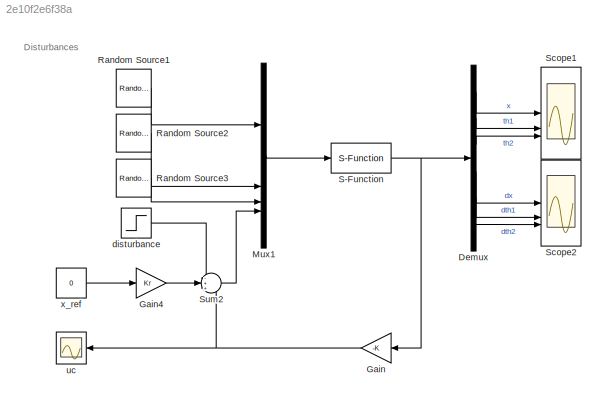
MODEL slx_2e10f2e6f38a
KIND model
CONFIG AbsTol = auto
CONFIG EnableMultiTasking = off
CONFIG FixedStep = auto
CONFIG MaxStep = 1e-4
CONFIG MinStep = auto
CONFIG RelTol = 1e-3
CONFIG SampleTimeConstraint = Unconstrained
CONFIG SolverName = ode23t
CONFIG StartTime = 0.0
CONFIG StopTime = 30
BLOCK [Demux] Demux
  Outputs = 6
BLOCK [Gain] Gain
  Gain = -K
  Multiplication = Matrix(K*u)
  NameLocation = top
BLOCK [Gain] Gain4
  Gain = Kr
BLOCK [Mux] Mux1
  DisplayOption = bar
BLOCK [Reference] Random Source1  REF=dspsrcs4/Random
Source
  NameLocation = left
  SourceBlock = dspsrcs4/Random\nSource
  SourceType = Random Source
  UserDataPersistent = on
BLOCK [Reference] Random Source2  REF=dspsrcs4/Random
Source
  NameLocation = left
  SourceBlock = dspsrcs4/Random\nSource
  SourceType = Random Source
  UserDataPersistent = on
BLOCK [Reference] Random Source3  REF=dspsrcs4/Random
Source
  NameLocation = left
  SourceBlock = dspsrcs4/Random\nSource
  SourceType = Random Source
  UserDataPersistent = on
BLOCK [S-Function] S-Function
  EnableBusSupport = off
  FunctionName = plant_dis
  Parameters = CoeF1, CoeF2, CoeF3, theta1_rad, theta2_rad
  SFcnIsStateOwnerBlock = off
  SFunctionDeploymentMode = off
BLOCK [Scope] Scope1
  Floating = off
  NumInputPorts = 3
  ScopeSpecificationString = Simulink.scopes.TimeScopeBlockCfg('CurrentConfiguration', extmgr.ConfigurationSet(extmgr.Configuration('Core','General UI',true,'FigureColor',[1 1 1]),extmgr.Configuration('Core','Source UI',true),extmgr.Configuration('Sources','WiredSimulink',true,'DataLoggingVariableName','ScopeData1'),extmgr.Configuration('Visuals','Time Domain',true,'SerializedDisplays',{struct('MinYLimReal','-0.12567','MaxYLi...<+1913ch>
BLOCK [Scope] Scope2
  Floating = off
  NumInputPorts = 3
  ScopeSpecificationString = Simulink.scopes.TimeScopeBlockCfg('CurrentConfiguration', extmgr.ConfigurationSet(extmgr.Configuration('Core','General UI',true,'FigureColor',[1 1 1]),extmgr.Configuration('Core','Source UI',true),extmgr.Configuration('Sources','WiredSimulink',true,'DataLoggingVariableName','ScopeData2'),extmgr.Configuration('Visuals','Time Domain',true,'SerializedDisplays',{struct('MinYLimReal','-2.55322','MaxYLi...<+1919ch>
BLOCK [Sum] Sum2
  Inputs = -++
BLOCK [Step] disturbance
  After = input_dis
  NameLocation = left
  SampleTime = 0
  Time = input_dis_time
BLOCK [Scope] uc
  Floating = off
  NameLocation = top
  NumInputPorts = 1
  ScopeSpecificationString = Simulink.scopes.TimeScopeBlockCfg('CurrentConfiguration', extmgr.ConfigurationSet(extmgr.Configuration('Core','General UI',true,'FigureColor',[1 1 1]),extmgr.Configuration('Core','Source UI',true),extmgr.Configuration('Sources','WiredSimulink',true,'DataLoggingVariableName','ScopeData6'),extmgr.Configuration('Visuals','Time Domain',true,'SerializedDisplays',{struct('MinYLimReal','-4.40233','MaxYLi...<+2313ch>
BLOCK [Constant] x_ref
  Value = 0
ANNOTATION (root): Disturbances
LINE Demux:1 -> Scope1:1
LINE Demux:2 -> Scope1:2
LINE Demux:3 -> Scope1:3
LINE Demux:4 -> Scope2:1
LINE Demux:5 -> Scope2:2
LINE Demux:6 -> Scope2:3
LINE Gain4:1 -> Sum2:2
NET Gain:1 -> Sum2:3, uc:1
LINE Mux1:1 -> S-Function:1
LINE Random Source1:1 -> Mux1:1
LINE Random Source2:1 -> Mux1:2
LINE Random Source3:1 -> Mux1:3
NET S-Function:1 -> Demux:1, Gain:1
LINE Sum2:1 -> Mux1:4
LINE disturbance:1 -> Sum2:1
LINE x_ref:1 -> Gain4:1
note: NET lines group one-source signal fan-out (src -> all destinations, sorted); 1:1 wires keep LINE
